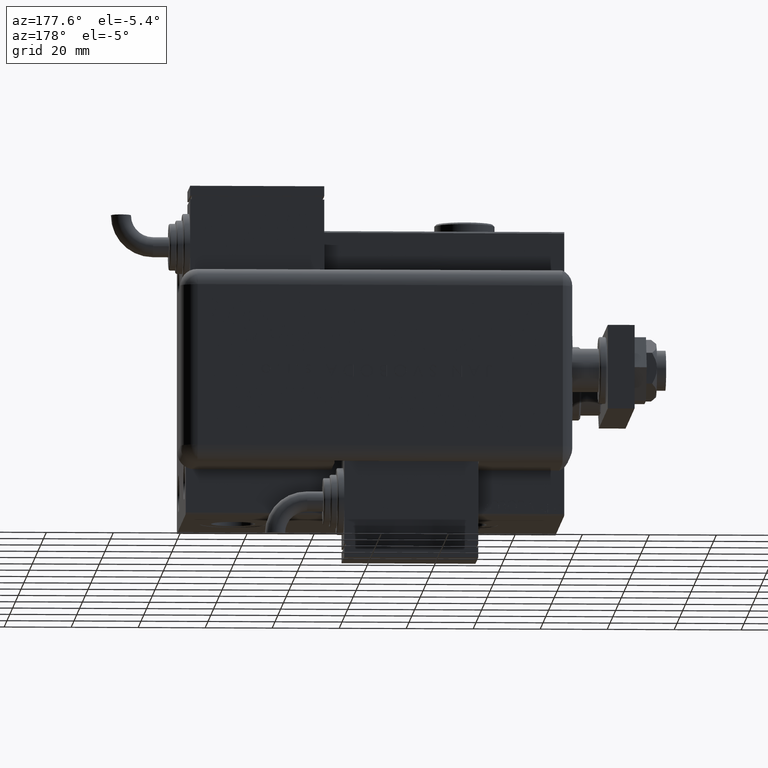
[diagram: clean part render]
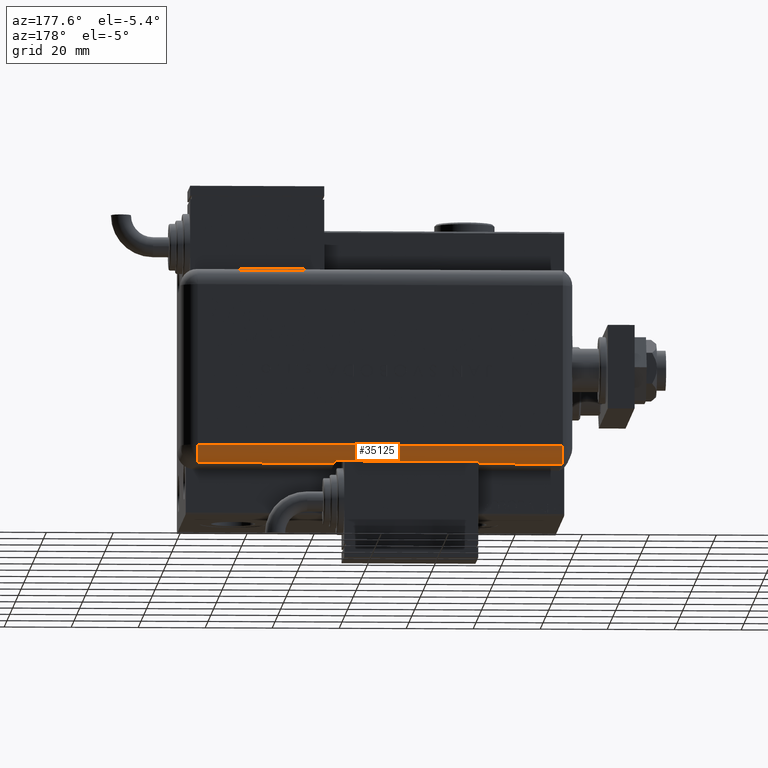
[diagram: same view with one face highlighted and labeled with its STEP entity id]
A machine part, auxiliary view. The second image highlights one B-rep face of the part: STEP entity #35125.
In plain terms, the highlighted cylindrical surface (edge-blend (fillet) strip) has radius 5 mm, axis along (1, -0, -0).
Its self-contained STEP definition (entity closure, byte-faithful):
#609 = EDGE_CURVE ( 'NONE', #1814, #6827, #3370, .T. ) ;
#864 = DIRECTION ( 'NONE',  ( 0.000000000000000000, 0.000000000000000000, -1.000000000000000000 ) ) ;
#1414 = DIRECTION ( 'NONE',  ( 0.000000000000000000, 0.000000000000000000, -1.000000000000000000 ) ) ;
#1814 = VERTEX_POINT ( 'NONE', #12356 ) ;
#3370 = CIRCLE ( 'NONE', #39026, 5.000000000000000888 ) ;
#4173 = AXIS2_PLACEMENT_3D ( 'NONE', #19613, #58062, #5645 ) ;
#4309 = CARTESIAN_POINT ( 'NONE',  ( -24.00000000000000000, 20.79999999999998650, 114.0000000000000000 ) ) ;
#5517 = LINE ( 'NONE', #24455, #13999 ) ;
#5645 = DIRECTION ( 'NONE',  ( -1.000000000000000000, 0.000000000000000000, 0.000000000000000000 ) ) ;
#6827 = VERTEX_POINT ( 'NONE', #26834 ) ;
#6854 = CIRCLE ( 'NONE', #45478, 5.000000000000000888 ) ;
#7492 = VERTEX_POINT ( 'NONE', #51499 ) ;
#7647 = CARTESIAN_POINT ( 'NONE',  ( -24.00000000000000000, 20.79999999999998650, 5.000000000000004441 ) ) ;
#7797 = CARTESIAN_POINT ( 'NONE',  ( -28.99999999999999645, 20.79999999999998650, 114.0000000000000000 ) ) ;
#8834 = DIRECTION ( 'NONE',  ( 0.000000000000000000, 0.000000000000000000, -1.000000000000000000 ) ) ;
#9225 = CARTESIAN_POINT ( 'NONE',  ( -24.00000000000000000, 20.79999999999998650, 46.00000000000001421 ) ) ;
#10224 = EDGE_CURVE ( 'NONE', #13877, #54759, #56076, .T. ) ;
#12356 = CARTESIAN_POINT ( 'NONE',  ( -28.48998886412872622, 22.99999999999998934, 46.00000000000001421 ) ) ;
#13299 = CARTESIAN_POINT ( 'NONE',  ( -24.00000000000000000, 20.79999999999998650, 89.00000000000001421 ) ) ;
#13524 = ORIENTED_EDGE ( 'NONE', *, *, #19269, .F. ) ;
#13877 = VERTEX_POINT ( 'NONE', #55505 ) ;
#13999 = VECTOR ( 'NONE', #864, 1000.000000000000000 ) ;
#14465 = ORIENTED_EDGE ( 'NONE', *, *, #31153, .F. ) ;
#15084 = DIRECTION ( 'NONE',  ( -0.000000000000000000, -0.000000000000000000, 1.000000000000000000 ) ) ;
#17053 = LINE ( 'NONE', #37219, #54331 ) ;
#18284 = DIRECTION ( 'NONE',  ( -0.000000000000000000, -0.000000000000000000, 1.000000000000000000 ) ) ;
#19269 = EDGE_CURVE ( 'NONE', #6827, #56227, #42025, .T. ) ;
#19613 = CARTESIAN_POINT ( 'NONE',  ( -24.00000000000000000, 20.79999999999998650, 114.0000000000000000 ) ) ;
#21587 = ORIENTED_EDGE ( 'NONE', *, *, #10224, .F. ) ;
#22947 = AXIS2_PLACEMENT_3D ( 'NONE', #4309, #23246, #47438 ) ;
#23246 = DIRECTION ( 'NONE',  ( 0.000000000000000000, 0.000000000000000000, -1.000000000000000000 ) ) ;
#23850 = ORIENTED_EDGE ( 'NONE', *, *, #59088, .F. ) ;
#24455 = CARTESIAN_POINT ( 'NONE',  ( -28.99999999999999645, 20.79999999999998650, 114.0000000000000000 ) ) ;
#24611 = VERTEX_POINT ( 'NONE', #7797 ) ;
#26518 = VECTOR ( 'NONE', #8834, 1000.000000000000000 ) ;
#26569 = DIRECTION ( 'NONE',  ( -0.000000000000000000, -0.000000000000000000, 1.000000000000000000 ) ) ;
#26834 = CARTESIAN_POINT ( 'NONE',  ( -28.99999999999999645, 20.79999999999998650, 46.00000000000001421 ) ) ;
#28305 = AXIS2_PLACEMENT_3D ( 'NONE', #13299, #47416, #61368 ) ;
#29652 = LINE ( 'NONE', #43932, #42213 ) ;
#30433 = CARTESIAN_POINT ( 'NONE',  ( -28.48998886412872622, 22.99999999999998934, 89.00000000000001421 ) ) ;
#31153 = EDGE_CURVE ( 'NONE', #35019, #24611, #35889, .T. ) ;
#33149 = CYLINDRICAL_SURFACE ( 'NONE', #22947, 5.000000000000000888 ) ;
#33455 = FACE_OUTER_BOUND ( 'NONE', #47451, .T. ) ;
#33859 = ORIENTED_EDGE ( 'NONE', *, *, #45611, .F. ) ;
#35019 = VERTEX_POINT ( 'NONE', #40644 ) ;
#35125 = ADVANCED_FACE ( 'NONE', ( #33455 ), #33149, .T. ) ;
#35889 = CIRCLE ( 'NONE', #4173, 5.000000000000000888 ) ;
#36806 = DIRECTION ( 'NONE',  ( -1.000000000000000000, 0.000000000000000000, 0.000000000000000000 ) ) ;
#37219 = CARTESIAN_POINT ( 'NONE',  ( -24.00000000000000000, 25.79999999999998295, 114.0000000000000000 ) ) ;
#39026 = AXIS2_PLACEMENT_3D ( 'NONE', #9225, #15084, #52328 ) ;
#40644 = CARTESIAN_POINT ( 'NONE',  ( -24.00000000000000000, 25.79999999999998295, 114.0000000000000000 ) ) ;
#41144 = ORIENTED_EDGE ( 'NONE', *, *, #609, .F. ) ;
#42025 = LINE ( 'NONE', #51335, #26518 ) ;
#42213 = VECTOR ( 'NONE', #1414, 1000.000000000000000 ) ;
#43932 = CARTESIAN_POINT ( 'NONE',  ( -28.48998886412872622, 22.99999999999998934, 114.0000000000000000 ) ) ;
#45478 = AXIS2_PLACEMENT_3D ( 'NONE', #7647, #26569, #36806 ) ;
#45611 = EDGE_CURVE ( 'NONE', #54759, #1814, #29652, .T. ) ;
#47416 = DIRECTION ( 'NONE',  ( 0.000000000000000000, -0.000000000000000000, -1.000000000000000000 ) ) ;
#47438 = DIRECTION ( 'NONE',  ( -1.000000000000000000, 0.000000000000000000, 0.000000000000000000 ) ) ;
#47451 = EDGE_LOOP ( 'NONE', ( #41144, #33859, #21587, #23850, #14465, #52641, #54260, #13524 ) ) ;
#49900 = CARTESIAN_POINT ( 'NONE',  ( -28.99999999999999645, 20.79999999999998650, 5.000000000000004441 ) ) ;
#51335 = CARTESIAN_POINT ( 'NONE',  ( -28.99999999999999645, 20.79999999999998650, 114.0000000000000000 ) ) ;
#51499 = CARTESIAN_POINT ( 'NONE',  ( -24.00000000000000000, 25.79999999999998295, 5.000000000000004441 ) ) ;
#52328 = DIRECTION ( 'NONE',  ( -1.000000000000000000, -3.469446951953613400E-15, 0.000000000000000000 ) ) ;
#52641 = ORIENTED_EDGE ( 'NONE', *, *, #59823, .F. ) ;
#54260 = ORIENTED_EDGE ( 'NONE', *, *, #60657, .T. ) ;
#54331 = VECTOR ( 'NONE', #18284, 1000.000000000000000 ) ;
#54759 = VERTEX_POINT ( 'NONE', #30433 ) ;
#55505 = CARTESIAN_POINT ( 'NONE',  ( -28.99999999999999645, 20.79999999999998650, 89.00000000000001421 ) ) ;
#56076 = CIRCLE ( 'NONE', #28305, 5.000000000000000888 ) ;
#56227 = VERTEX_POINT ( 'NONE', #49900 ) ;
#58062 = DIRECTION ( 'NONE',  ( -0.000000000000000000, -0.000000000000000000, 1.000000000000000000 ) ) ;
#59088 = EDGE_CURVE ( 'NONE', #24611, #13877, #5517, .T. ) ;
#59823 = EDGE_CURVE ( 'NONE', #7492, #35019, #17053, .T. ) ;
#60657 = EDGE_CURVE ( 'NONE', #7492, #56227, #6854, .T. ) ;
#61368 = DIRECTION ( 'NONE',  ( 1.000000000000000000, 0.000000000000000000, 0.000000000000000000 ) ) ;